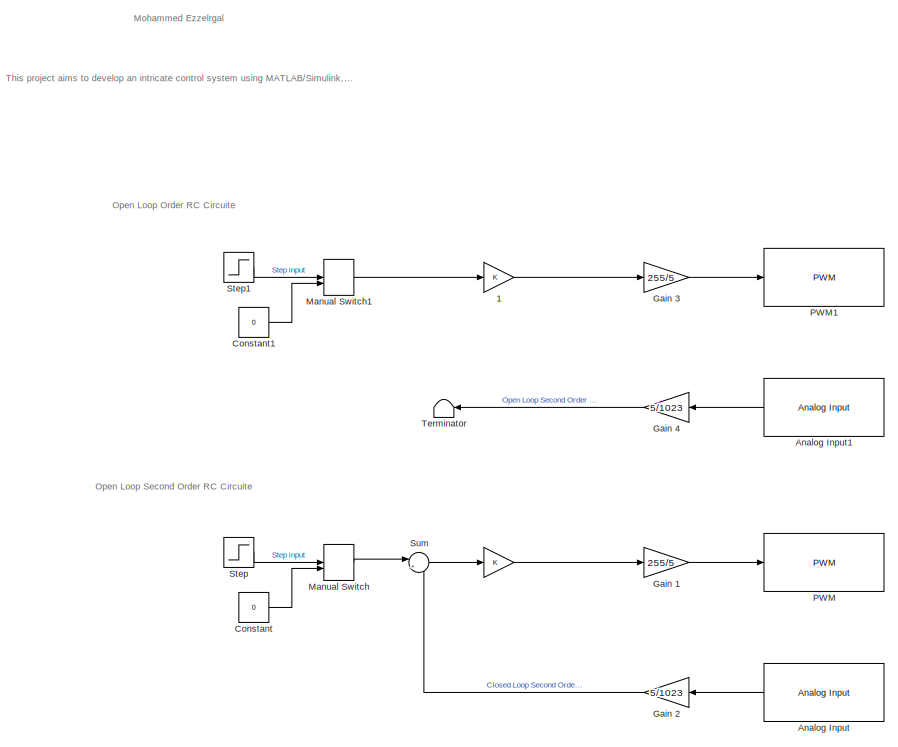
[diagram: root canvas - part 1/2, full width, top band]
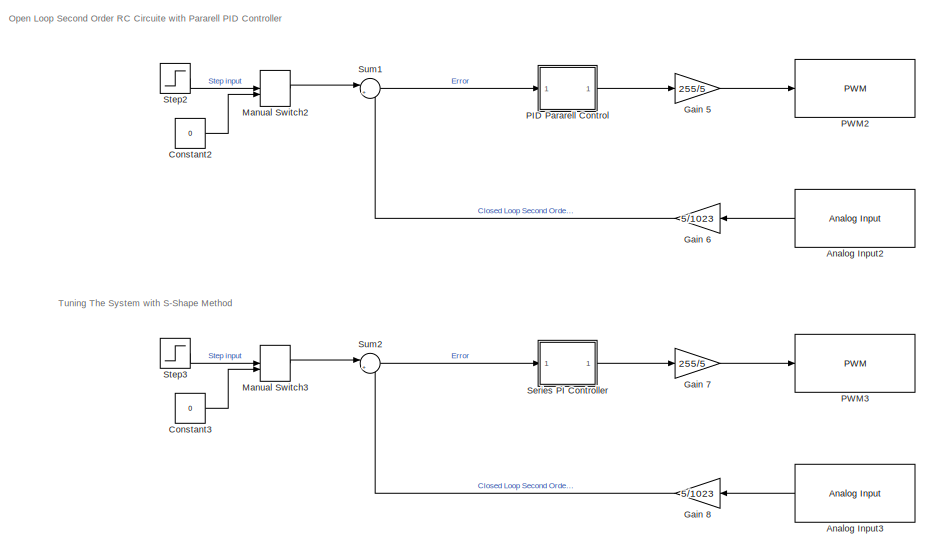
[diagram: root canvas - part 2/2, full width, bottom band]
MODEL slx_afa71d6628c7
KIND model
CONFIG AbsTol = auto
CONFIG EnableMultiTasking = on
CONFIG FixedStep = 0.001
CONFIG MaxStep = auto
CONFIG MinStep = auto
CONFIG RelTol = 1e-3
CONFIG SampleTimeConstraint = Unconstrained
CONFIG SolverName = FixedStepAuto
CONFIG StartTime = 0.0
CONFIG StopTime = 20
BLOCK [Gain]  
BLOCK [Gain]  1
BLOCK [Reference] Analog Input  REF=arduinolib/Analog Input
  NameLocation = top
  SourceBlock = arduinolib/Analog Input
  SourceType = Arduino Analog Input
BLOCK [Reference] Analog Input1  REF=arduinolib/Analog Input
  NameLocation = top
  SourceBlock = arduinolib/Analog Input
  SourceType = Arduino Analog Input
BLOCK [Reference] Analog Input2  REF=arduinolib/Analog Input
  NameLocation = top
  SourceBlock = arduinolib/Analog Input
  SourceType = Arduino Analog Input
BLOCK [Reference] Analog Input3  REF=arduinolib/Analog Input
  NameLocation = top
  SourceBlock = arduinolib/Analog Input
  SourceType = Arduino Analog Input
BLOCK [Constant] Constant
  Value = 0
BLOCK [Constant] Constant1
  Value = 0
BLOCK [Constant] Constant2
  Value = 0
BLOCK [Constant] Constant3
  Value = 0
BLOCK [Gain] Gain 1
  Gain = 255/5
BLOCK [Gain] Gain 2
  Gain = 5/1023
  NameLocation = top
BLOCK [Gain] Gain 3
  Gain = 255/5
BLOCK [Gain] Gain 4
  Gain = 5/1023
  NameLocation = top
BLOCK [Gain] Gain 5
  Gain = 255/5
BLOCK [Gain] Gain 6
  Gain = 5/1023
  NameLocation = top
BLOCK [Gain] Gain 7
  Gain = 255/5
BLOCK [Gain] Gain 8
  Gain = 5/1023
  NameLocation = top
BLOCK [ManualSwitch] Manual Switch
BLOCK [ManualSwitch] Manual Switch1
BLOCK [ManualSwitch] Manual Switch2
BLOCK [ManualSwitch] Manual Switch3
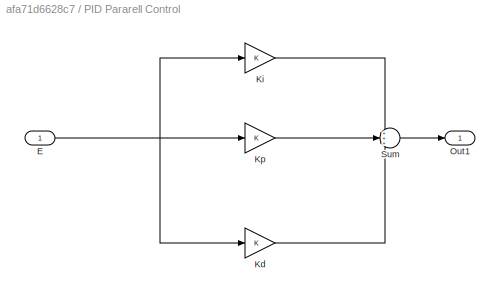
BLOCK [SubSystem] PID Pararell Control
BLOCK [Inport] PID Pararell Control/E
BLOCK [Gain] PID Pararell Control/Kd
BLOCK [Gain] PID Pararell Control/Ki
BLOCK [Gain] PID Pararell Control/Kp
BLOCK [Outport] PID Pararell Control/Out1
BLOCK [Sum] PID Pararell Control/Sum
  Inputs = +++
BLOCK [Reference] PWM  REF=arduinolib/PWM
  SourceBlock = arduinolib/PWM
  SourceType = Arduino PWM
BLOCK [Reference] PWM1  REF=arduinolib/PWM
  SourceBlock = arduinolib/PWM
  SourceType = Arduino PWM
BLOCK [Reference] PWM2  REF=arduinolib/PWM
  SourceBlock = arduinolib/PWM
  SourceType = Arduino PWM
BLOCK [Reference] PWM3  REF=arduinolib/PWM
  SourceBlock = arduinolib/PWM
  SourceType = Arduino PWM
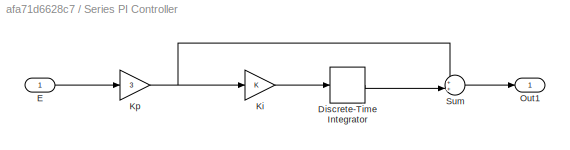
BLOCK [SubSystem] Series PI Controller
BLOCK [DiscreteIntegrator] Series PI Controller/Discrete-Time Integrator
  ICPrevOutput = DiscIntNeverNeededParam
  ICPrevScaledInput = DiscIntNeverNeededParam
  InitialConditionSetting = Auto
  SampleTime = -1
BLOCK [Inport] Series PI Controller/E
BLOCK [Gain] Series PI Controller/Ki
BLOCK [Gain] Series PI Controller/Kp
  Gain = 3
BLOCK [Outport] Series PI Controller/Out1
BLOCK [Sum] Series PI Controller/Sum
  Inputs = ++|
BLOCK [Step] Step
  SampleTime = 0
BLOCK [Step] Step1
  SampleTime = 0
BLOCK [Step] Step2
  SampleTime = 0
BLOCK [Step] Step3
  SampleTime = 0
BLOCK [Sum] Sum
  Inputs = |+-
BLOCK [Sum] Sum1
  Inputs = |+-
BLOCK [Sum] Sum2
  Inputs = |+-
BLOCK [Terminator] Terminator
  NameLocation = top
ANNOTATION (root): Mohammed Ezzelrgal
ANNOTATION (root): This project aims to develop an intricate control system using MATLAB/Simulink, RC circuits, and Arduino. The overarching objective includes the implementation of open-loop and closed-loop control systems, first-order and second-order systems, PID controller design, and parameter tuning. The uniqueness of this project lies in the meticulous design of three second-order systems, representing underd...<+101ch>
ANNOTATION (root): Open Loop Order RC Circuite
ANNOTATION (root): Open Loop Second Order RC Circuite
ANNOTATION (root): Open Loop Second Order RC Circuite with Pararell PID Controller
ANNOTATION (root): Tuning The System with S-Shape Method
LINE  1:1 -> Gain 3:1
LINE  :1 -> Gain 1:1
LINE Analog Input1:1 -> Gain 4:1
LINE Analog Input2:1 -> Gain 6:1
LINE Analog Input3:1 -> Gain 8:1
LINE Analog Input:1 -> Gain 2:1
LINE Constant1:1 -> Manual Switch1:2
LINE Constant2:1 -> Manual Switch2:2
LINE Constant3:1 -> Manual Switch3:2
LINE Constant:1 -> Manual Switch:2
LINE Gain 1:1 -> PWM:1
LINE Gain 2:1 -> Sum:2
LINE Gain 3:1 -> PWM1:1
LINE Gain 4:1 -> Terminator:1
LINE Gain 5:1 -> PWM2:1
LINE Gain 6:1 -> Sum1:2
LINE Gain 7:1 -> PWM3:1
LINE Gain 8:1 -> Sum2:2
LINE Manual Switch1:1 ->  1:1
LINE Manual Switch2:1 -> Sum1:1
LINE Manual Switch3:1 -> Sum2:1
LINE Manual Switch:1 -> Sum:1
NET PID Pararell Control/E:1 -> PID Pararell Control/Kd:1, PID Pararell Control/Ki:1, PID Pararell Control/Kp:1
LINE PID Pararell Control/Kd:1 -> PID Pararell Control/Sum:3
LINE PID Pararell Control/Ki:1 -> PID Pararell Control/Sum:1
LINE PID Pararell Control/Kp:1 -> PID Pararell Control/Sum:2
LINE PID Pararell Control/Sum:1 -> PID Pararell Control/Out1:1
LINE PID Pararell Control:1 -> Gain 5:1
LINE Series PI Controller/Discrete-Time Integrator:1 -> Series PI Controller/Sum:2
LINE Series PI Controller/E:1 -> Series PI Controller/Kp:1
LINE Series PI Controller/Ki:1 -> Series PI Controller/Discrete-Time Integrator:1
NET Series PI Controller/Kp:1 -> Series PI Controller/Ki:1, Series PI Controller/Sum:1
LINE Series PI Controller/Sum:1 -> Series PI Controller/Out1:1
LINE Series PI Controller:1 -> Gain 7:1
LINE Step1:1 -> Manual Switch1:1
LINE Step2:1 -> Manual Switch2:1
LINE Step3:1 -> Manual Switch3:1
LINE Step:1 -> Manual Switch:1
LINE Sum1:1 -> PID Pararell Control:1
LINE Sum2:1 -> Series PI Controller:1
LINE Sum:1 ->  :1
note: NET lines group one-source signal fan-out (src -> all destinations, sorted); 1:1 wires keep LINE
